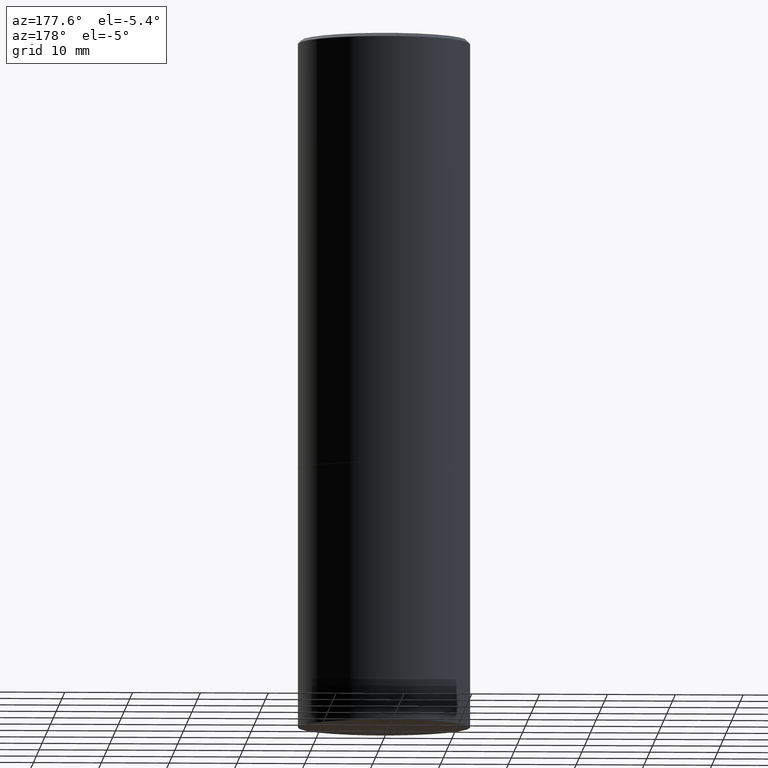
[diagram: clean part render]
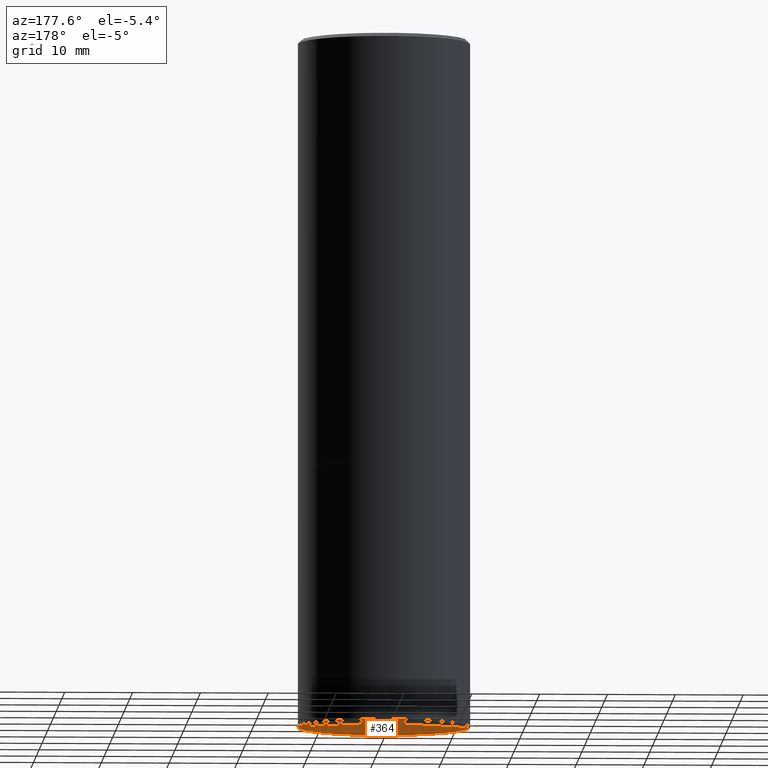
[diagram: same view with one face highlighted and labeled with its STEP entity id]
A machine part, auxiliary view. The second image highlights one B-rep face of the part: STEP entity #364.
In plain terms, the highlighted conical surface has half-angle 87 deg.
Its self-contained STEP definition (entity closure, byte-faithful):
#5 = LINE ( 'NONE', #54, #322 ) ;
#11 = CIRCLE ( 'NONE', #39, 0.5000000000000000000 ) ;
#29 = DIRECTION ( 'NONE',  ( 2.445468806185136597E-29, -3.491481338843145583E-15, -1.000000000000000000 ) ) ;
#34 = EDGE_LOOP ( 'NONE', ( #370, #131, #182 ) ) ;
#39 = AXIS2_PLACEMENT_3D ( 'NONE', #242, #147, #385 ) ;
#46 = LINE ( 'NONE', #358, #383 ) ;
#54 = CARTESIAN_POINT ( 'NONE',  ( 2.735601209579181363E-18, -1.387443496368411928E-14, -3.973796110358482903 ) ) ;
#83 = DIRECTION ( 'NONE',  ( 0.9986295347545742773, -7.033825938271998700E-15, -0.05233595624293709697 ) ) ;
#98 = CONICAL_SURFACE ( 'NONE', #118, 751.2258538476644389, 1.518436449235073482 ) ;
#118 = AXIS2_PLACEMENT_3D ( 'NONE', #268, #29, #213 ) ;
#131 = ORIENTED_EDGE ( 'NONE', *, *, #241, .T. ) ;
#141 = DIRECTION ( 'NONE',  ( -0.9986295347545742773, 6.790662755453666100E-15, -0.05233595624293709697 ) ) ;
#145 = EDGE_CURVE ( 'NONE', #384, #164, #46, .T. ) ;
#146 = CARTESIAN_POINT ( 'NONE',  ( 9.715884169906814161E-29, -1.387717056489360055E-14, -3.973796110358482903 ) ) ;
#147 = DIRECTION ( 'NONE',  ( -2.445468806185136597E-29, 3.491481338843145583E-15, 1.000000000000000000 ) ) ;
#164 = VERTEX_POINT ( 'NONE', #200 ) ;
#166 = FACE_OUTER_BOUND ( 'NONE', #34, .T. ) ;
#182 = ORIENTED_EDGE ( 'NONE', *, *, #248, .F. ) ;
#200 = CARTESIAN_POINT ( 'NONE',  ( -0.4999999999999993894, -1.047444401652945213E-14, -4.000000000000000000 ) ) ;
#213 = DIRECTION ( 'NONE',  ( -1.000000000000000000, 6.982962677686265922E-15, 0.000000000000000000 ) ) ;
#241 = EDGE_CURVE ( 'NONE', #384, #344, #5, .T. ) ;
#242 = CARTESIAN_POINT ( 'NONE',  ( 9.781875224740546387E-29, -1.396592535537258233E-14, -4.000000000000000000 ) ) ;
#248 = EDGE_CURVE ( 'NONE', #164, #344, #11, .T. ) ;
#268 = CARTESIAN_POINT ( 'NONE',  ( 1.059960938861292495E-27, -1.513343301937292314E-13, -43.34387485051595945 ) ) ;
#304 = CARTESIAN_POINT ( 'NONE',  ( 0.4999999999999993894, -1.739617435425834338E-14, -4.000000000000000000 ) ) ;
#322 = VECTOR ( 'NONE', #83, 39.37007874015748143 ) ;
#344 = VERTEX_POINT ( 'NONE', #304 ) ;
#358 = CARTESIAN_POINT ( 'NONE',  ( -2.735601209384825372E-18, -1.387443496368411928E-14, -3.973796110358482903 ) ) ;
#364 = ADVANCED_FACE ( 'NONE', ( #166 ), #98, .F. ) ;
#370 = ORIENTED_EDGE ( 'NONE', *, *, #145, .F. ) ;
#383 = VECTOR ( 'NONE', #141, 39.37007874015748143 ) ;
#384 = VERTEX_POINT ( 'NONE', #146 ) ;
#385 = DIRECTION ( 'NONE',  ( 1.000000000000000000, -6.982962677686266711E-15, 0.000000000000000000 ) ) ;